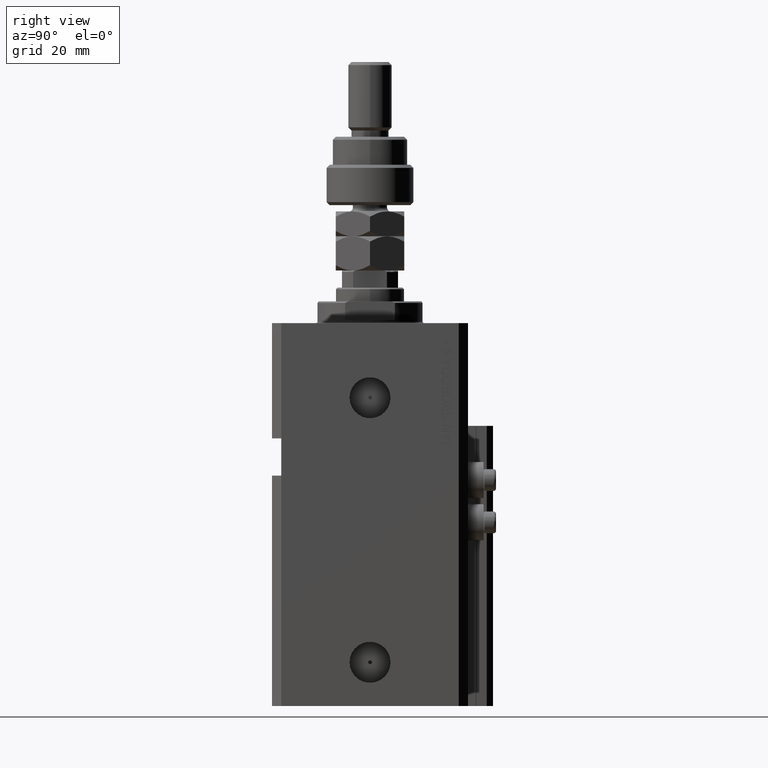
[diagram: clean part render]
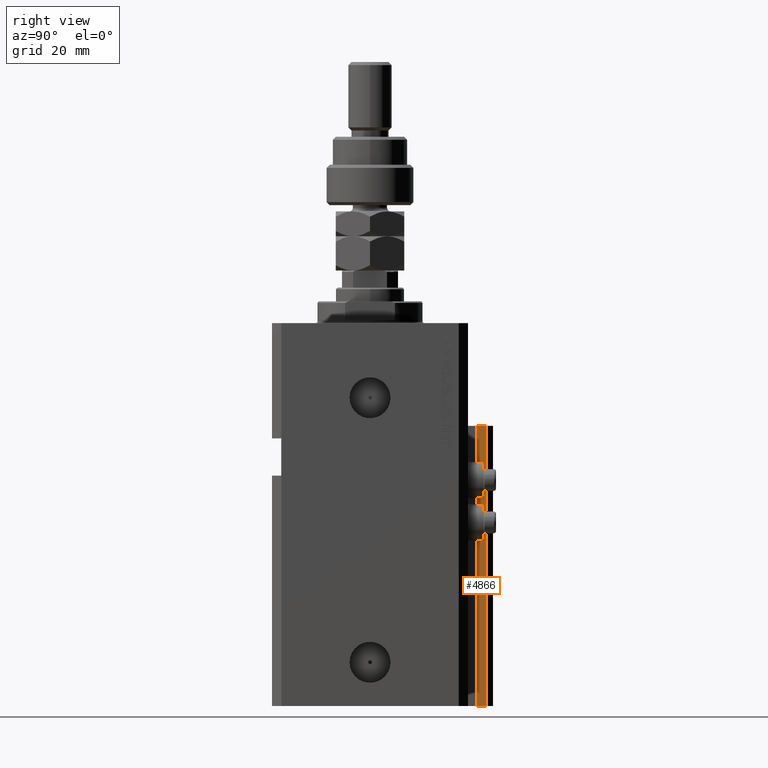
[diagram: same view with one face highlighted and labeled with its STEP entity id]
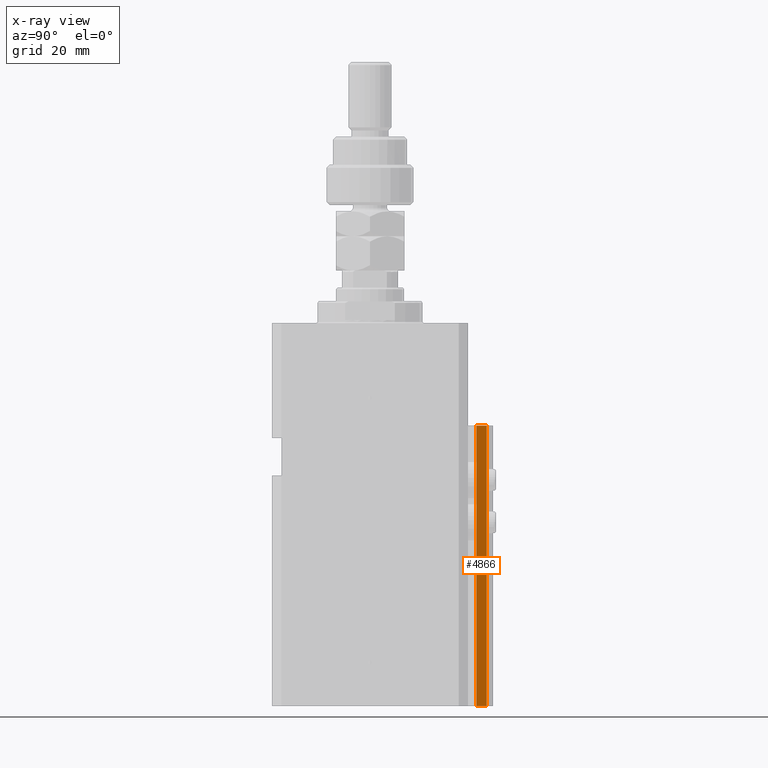
[diagram: x-ray of the same camera — body ghosted, the highlighted face saturated]
A machine part, right view. The second image highlights one B-rep face of the part: STEP entity #4866.
The next image is the same camera in x-ray: the body ghosted, the highlighted face saturated — about 0% of this face is hidden behind the body in this view.
In plain terms, the highlighted planar face has unit normal (1, 0, 0).
Its self-contained STEP definition (entity closure, byte-faithful):
#482 = DIRECTION ( 'NONE',  ( -5.256737805990328981E-16, 1.000000000000000000, 0.000000000000000000 ) ) ;
#2025 = EDGE_CURVE ( 'NONE', #22241, #7047, #4778, .T. ) ;
#2567 = LINE ( 'NONE', #10805, #22923 ) ;
#3625 = VECTOR ( 'NONE', #482, 1000.000000000000000 ) ;
#4778 = LINE ( 'NONE', #8158, #43145 ) ;
#4866 = ADVANCED_FACE ( 'NONE', ( #45138 ), #17845, .T. ) ;
#5458 = CARTESIAN_POINT ( 'NONE',  ( 12.00000000000000000, 37.50000000000002132, -123.0000000000000000 ) ) ;
#6378 = VECTOR ( 'NONE', #18713, 1000.000000000000000 ) ;
#6737 = ORIENTED_EDGE ( 'NONE', *, *, #10772, .T. ) ;
#7047 = VERTEX_POINT ( 'NONE', #5458 ) ;
#7730 = EDGE_CURVE ( 'NONE', #22241, #49924, #30557, .T. ) ;
#8158 = CARTESIAN_POINT ( 'NONE',  ( 12.00000000000000178, 34.20000000000002416, -123.0000000000000000 ) ) ;
#10772 = EDGE_CURVE ( 'NONE', #7047, #24424, #2567, .T. ) ;
#10805 = CARTESIAN_POINT ( 'NONE',  ( 12.00000000000000000, 37.50000000000002132, -123.0000000000000000 ) ) ;
#11813 = LINE ( 'NONE', #35750, #3625 ) ;
#12014 = DIRECTION ( 'NONE',  ( -5.256737805990328981E-16, 1.000000000000000000, 0.000000000000000000 ) ) ;
#12660 = ORIENTED_EDGE ( 'NONE', *, *, #39932, .F. ) ;
#14592 = CARTESIAN_POINT ( 'NONE',  ( 11.99999999999999822, 34.20000000000002416, -123.0000000000000000 ) ) ;
#15074 = ORIENTED_EDGE ( 'NONE', *, *, #2025, .T. ) ;
#15764 = EDGE_LOOP ( 'NONE', ( #12660, #48236, #15074, #6737 ) ) ;
#17845 = PLANE ( 'NONE',  #45725 ) ;
#18713 = DIRECTION ( 'NONE',  ( 0.000000000000000000, 0.000000000000000000, 1.000000000000000000 ) ) ;
#22241 = VERTEX_POINT ( 'NONE', #48705 ) ;
#22923 = VECTOR ( 'NONE', #34499, 1000.000000000000000 ) ;
#24424 = VERTEX_POINT ( 'NONE', #36811 ) ;
#25828 = DIRECTION ( 'NONE',  ( -5.256737805990329967E-16, 1.000000000000000000, 0.000000000000000000 ) ) ;
#30557 = LINE ( 'NONE', #14592, #6378 ) ;
#34499 = DIRECTION ( 'NONE',  ( 0.000000000000000000, 0.000000000000000000, 1.000000000000000000 ) ) ;
#34862 = CARTESIAN_POINT ( 'NONE',  ( 11.99999999999999822, 34.20000000000002416, -33.00000000000000000 ) ) ;
#35750 = CARTESIAN_POINT ( 'NONE',  ( 12.00000000000000178, 34.20000000000002416, -33.00000000000000000 ) ) ;
#36633 = DIRECTION ( 'NONE',  ( 1.000000000000000000, 5.256737805990329967E-16, -0.000000000000000000 ) ) ;
#36811 = CARTESIAN_POINT ( 'NONE',  ( 12.00000000000000000, 37.50000000000002132, -33.00000000000000000 ) ) ;
#37393 = CARTESIAN_POINT ( 'NONE',  ( 12.00000000000000178, 34.20000000000002416, -123.0000000000000000 ) ) ;
#39932 = EDGE_CURVE ( 'NONE', #49924, #24424, #11813, .T. ) ;
#43145 = VECTOR ( 'NONE', #12014, 1000.000000000000000 ) ;
#45138 = FACE_OUTER_BOUND ( 'NONE', #15764, .T. ) ;
#45725 = AXIS2_PLACEMENT_3D ( 'NONE', #37393, #36633, #25828 ) ;
#48236 = ORIENTED_EDGE ( 'NONE', *, *, #7730, .F. ) ;
#48705 = CARTESIAN_POINT ( 'NONE',  ( 11.99999999999999822, 34.20000000000002416, -123.0000000000000000 ) ) ;
#49924 = VERTEX_POINT ( 'NONE', #34862 ) ;